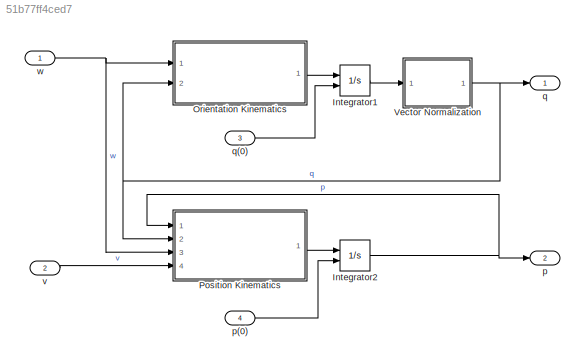
MODEL slx_51b77ff4ced7
KIND model
CONFIG AbsTol = auto
CONFIG EnableMultiTasking = off
CONFIG FixedStep = auto
CONFIG MaxStep = auto
CONFIG MinStep = auto
CONFIG RelTol = 1e-3
CONFIG SampleTimeConstraint = Unconstrained
CONFIG SolverName = VariableStepAuto
CONFIG StartTime = 0.0
CONFIG StopTime = 10.0
BLOCK [Integrator] Integrator1
  InitialConditionSource = external
  Ports = [2, 1]
BLOCK [Integrator] Integrator2
  InitialConditionSource = external
  Ports = [2, 1]
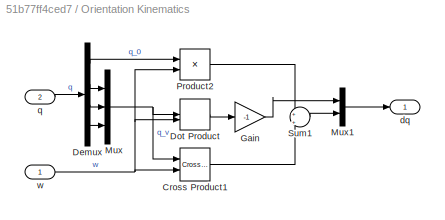
BLOCK [SubSystem] Orientation Kinematics
  Ports = [2, 1]
  RequestExecContextInheritance = off
BLOCK [Reference] Orientation Kinematics/Cross Product1  REF=vrlib/Utilities/Cross Product
  Ports = [2, 1]
  SourceBlock = vrlib/Utilities/Cross Product
  SourceProductBaseCode = SL
  SourceType = Cross Product
BLOCK [Demux] Orientation Kinematics/Demux
  Ports = [1, 4]
BLOCK [DotProduct] Orientation Kinematics/Dot Product
  OutDataTypeStr = Inherit: Inherit via internal rule
BLOCK [Gain] Orientation Kinematics/Gain
  Gain = -1
BLOCK [Mux] Orientation Kinematics/Mux
  DisplayOption = bar
  Inputs = 3
  Ports = [3, 1]
BLOCK [Mux] Orientation Kinematics/Mux1
  DisplayOption = bar
  Inputs = 2
  Ports = [2, 1]
BLOCK [Product] Orientation Kinematics/Product2
  Ports = [2, 1]
BLOCK [Sum] Orientation Kinematics/Sum1
  Inputs = +|+
  Ports = [2, 1]
BLOCK [Outport] Orientation Kinematics/dq
BLOCK [Inport] Orientation Kinematics/q
  Port = 2
BLOCK [Inport] Orientation Kinematics/w
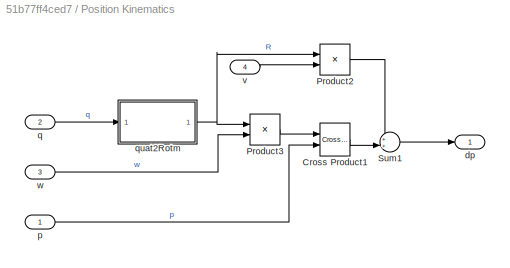
BLOCK [SubSystem] Position Kinematics
  Ports = [4, 1]
  RequestExecContextInheritance = off
BLOCK [Reference] Position Kinematics/Cross Product1  REF=vrlib/Utilities/Cross Product
  Ports = [2, 1]
  SourceBlock = vrlib/Utilities/Cross Product
  SourceProductBaseCode = SL
  SourceType = Cross Product
BLOCK [Product] Position Kinematics/Product2
  Multiplication = Matrix(*)
  Ports = [2, 1]
BLOCK [Product] Position Kinematics/Product3
  Multiplication = Matrix(*)
  Ports = [2, 1]
BLOCK [Sum] Position Kinematics/Sum1
  Inputs = ++|
  Ports = [2, 1]
BLOCK [Outport] Position Kinematics/dp
BLOCK [Inport] Position Kinematics/p
BLOCK [Inport] Position Kinematics/q
  Port = 2
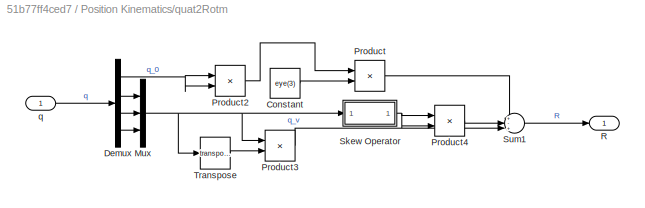
BLOCK [SubSystem] Position Kinematics/quat2Rotm
  Ports = [1, 1]
  RequestExecContextInheritance = off
BLOCK [Constant] Position Kinematics/quat2Rotm/Constant
  Value = eye(3)
BLOCK [Demux] Position Kinematics/quat2Rotm/Demux
  Ports = [1, 4]
BLOCK [Mux] Position Kinematics/quat2Rotm/Mux
  DisplayOption = bar
  Inputs = 3
  Ports = [3, 1]
BLOCK [Product] Position Kinematics/quat2Rotm/Product
  Ports = [2, 1]
BLOCK [Product] Position Kinematics/quat2Rotm/Product2
  Ports = [2, 1]
BLOCK [Product] Position Kinematics/quat2Rotm/Product3
  Multiplication = Matrix(*)
  Ports = [2, 1]
BLOCK [Product] Position Kinematics/quat2Rotm/Product4
  Multiplication = Matrix(*)
  Ports = [2, 1]
BLOCK [Outport] Position Kinematics/quat2Rotm/R
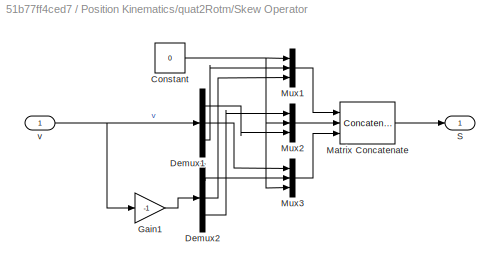
BLOCK [SubSystem] Position Kinematics/quat2Rotm/Skew Operator
  Description = S(v)
  Ports = [1, 1]
  RequestExecContextInheritance = off
BLOCK [Constant] Position Kinematics/quat2Rotm/Skew Operator/Constant
  Value = 0
BLOCK [Demux] Position Kinematics/quat2Rotm/Skew Operator/Demux1
  Outputs = 3
  Ports = [1, 3]
BLOCK [Demux] Position Kinematics/quat2Rotm/Skew Operator/Demux2
  Outputs = 3
  Ports = [1, 3]
BLOCK [Gain] Position Kinematics/quat2Rotm/Skew Operator/Gain1
  Gain = -1
BLOCK [Concatenate] Position Kinematics/quat2Rotm/Skew Operator/Matrix Concatenate
  ConcatenateDimension = 2
  Mode = Multidimensional array
  NumInputs = 3
  Ports = [3, 1]
BLOCK [Mux] Position Kinematics/quat2Rotm/Skew Operator/Mux1
  DisplayOption = bar
  Inputs = 3
  Ports = [3, 1]
BLOCK [Mux] Position Kinematics/quat2Rotm/Skew Operator/Mux2
  DisplayOption = bar
  Inputs = 3
  Ports = [3, 1]
BLOCK [Mux] Position Kinematics/quat2Rotm/Skew Operator/Mux3
  DisplayOption = bar
  Inputs = 3
  Ports = [3, 1]
BLOCK [Outport] Position Kinematics/quat2Rotm/Skew Operator/S
BLOCK [Inport] Position Kinematics/quat2Rotm/Skew Operator/v
BLOCK [Sum] Position Kinematics/quat2Rotm/Sum1
  Inputs = +-+
  Ports = [3, 1]
BLOCK [Math] Position Kinematics/quat2Rotm/Transpose
  Operator = transpose
  Ports = [1, 1]
BLOCK [Inport] Position Kinematics/quat2Rotm/q
BLOCK [Inport] Position Kinematics/v
  Port = 4
BLOCK [Inport] Position Kinematics/w
  Port = 3
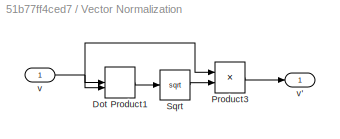
BLOCK [SubSystem] Vector Normalization
  Ports = [1, 1]
  RequestExecContextInheritance = off
BLOCK [DotProduct] Vector Normalization/Dot Product1
  OutDataTypeStr = Inherit: Inherit via internal rule
BLOCK [Product] Vector Normalization/Product3
  Inputs = */
  Ports = [2, 1]
BLOCK [Sqrt] Vector Normalization/Sqrt
BLOCK [Inport] Vector Normalization/v
BLOCK [Outport] Vector Normalization/v'
BLOCK [Outport] p
  Port = 2
BLOCK [Inport] p(0)
  Port = 4
  PortDimensions = 3
BLOCK [Outport] q
BLOCK [Inport] q(0)
  Port = 3
  PortDimensions = 4
BLOCK [Inport] v
  Port = 2
  PortDimensions = 3
BLOCK [Inport] w
  PortDimensions = 3
LINE Integrator1:1 -> Vector Normalization:1
NET Integrator2:1 -> Position Kinematics:1, p:1
LINE Orientation Kinematics/Cross Product1:1 -> Orientation Kinematics/Sum1:2
LINE Orientation Kinematics/Demux:1 -> Orientation Kinematics/Product2:1
LINE Orientation Kinematics/Demux:2 -> Orientation Kinematics/Mux:1
LINE Orientation Kinematics/Demux:3 -> Orientation Kinematics/Mux:2
LINE Orientation Kinematics/Demux:4 -> Orientation Kinematics/Mux:3
LINE Orientation Kinematics/Dot Product:1 -> Orientation Kinematics/Gain:1
LINE Orientation Kinematics/Gain:1 -> Orientation Kinematics/Mux1:1
LINE Orientation Kinematics/Mux1:1 -> Orientation Kinematics/dq:1
NET Orientation Kinematics/Mux:1 -> Orientation Kinematics/Cross Product1:1, Orientation Kinematics/Dot Product:1
LINE Orientation Kinematics/Product2:1 -> Orientation Kinematics/Sum1:1
LINE Orientation Kinematics/Sum1:1 -> Orientation Kinematics/Mux1:2
LINE Orientation Kinematics/q:1 -> Orientation Kinematics/Demux:1
NET Orientation Kinematics/w:1 -> Orientation Kinematics/Cross Product1:2, Orientation Kinematics/Dot Product:2, Orientation Kinematics/Product2:2
LINE Orientation Kinematics:1 -> Integrator1:1
LINE Position Kinematics/Cross Product1:1 -> Position Kinematics/Sum1:2
LINE Position Kinematics/Product2:1 -> Position Kinematics/Sum1:1
LINE Position Kinematics/Product3:1 -> Position Kinematics/Cross Product1:1
LINE Position Kinematics/Sum1:1 -> Position Kinematics/dp:1
LINE Position Kinematics/p:1 -> Position Kinematics/Cross Product1:2
LINE Position Kinematics/q:1 -> Position Kinematics/quat2Rotm:1
LINE Position Kinematics/quat2Rotm/Constant:1 -> Position Kinematics/quat2Rotm/Product:2
NET Position Kinematics/quat2Rotm/Demux:1 -> Position Kinematics/quat2Rotm/Product2:1, Position Kinematics/quat2Rotm/Product2:2
LINE Position Kinematics/quat2Rotm/Demux:2 -> Position Kinematics/quat2Rotm/Mux:1
LINE Position Kinematics/quat2Rotm/Demux:3 -> Position Kinematics/quat2Rotm/Mux:2
LINE Position Kinematics/quat2Rotm/Demux:4 -> Position Kinematics/quat2Rotm/Mux:3
NET Position Kinematics/quat2Rotm/Mux:1 -> Position Kinematics/quat2Rotm/Product3:1, Position Kinematics/quat2Rotm/Skew Operator:1, Position Kinematics/quat2Rotm/Transpose:1
LINE Position Kinematics/quat2Rotm/Product2:1 -> Position Kinematics/quat2Rotm/Product:1
LINE Position Kinematics/quat2Rotm/Product3:1 -> Position Kinematics/quat2Rotm/Sum1:3
LINE Position Kinematics/quat2Rotm/Product4:1 -> Position Kinematics/quat2Rotm/Sum1:2
LINE Position Kinematics/quat2Rotm/Product:1 -> Position Kinematics/quat2Rotm/Sum1:1
NET Position Kinematics/quat2Rotm/Skew Operator/Constant:1 -> Position Kinematics/quat2Rotm/Skew Operator/Mux1:1, Position Kinematics/quat2Rotm/Skew Operator/Mux2:2, Position Kinematics/quat2Rotm/Skew Operator/Mux3:3
LINE Position Kinematics/quat2Rotm/Skew Operator/Demux1:1 -> Position Kinematics/quat2Rotm/Skew Operator/Mux2:3
LINE Position Kinematics/quat2Rotm/Skew Operator/Demux1:2 -> Position Kinematics/quat2Rotm/Skew Operator/Mux3:1
LINE Position Kinematics/quat2Rotm/Skew Operator/Demux1:3 -> Position Kinematics/quat2Rotm/Skew Operator/Mux1:2
LINE Position Kinematics/quat2Rotm/Skew Operator/Demux2:1 -> Position Kinematics/quat2Rotm/Skew Operator/Mux3:2
LINE Position Kinematics/quat2Rotm/Skew Operator/Demux2:2 -> Position Kinematics/quat2Rotm/Skew Operator/Mux1:3
LINE Position Kinematics/quat2Rotm/Skew Operator/Demux2:3 -> Position Kinematics/quat2Rotm/Skew Operator/Mux2:1
LINE Position Kinematics/quat2Rotm/Skew Operator/Gain1:1 -> Position Kinematics/quat2Rotm/Skew Operator/Demux2:1
LINE Position Kinematics/quat2Rotm/Skew Operator/Matrix Concatenate:1 -> Position Kinematics/quat2Rotm/Skew Operator/S:1
LINE Position Kinematics/quat2Rotm/Skew Operator/Mux1:1 -> Position Kinematics/quat2Rotm/Skew Operator/Matrix Concatenate:1
LINE Position Kinematics/quat2Rotm/Skew Operator/Mux2:1 -> Position Kinematics/quat2Rotm/Skew Operator/Matrix Concatenate:2
LINE Position Kinematics/quat2Rotm/Skew Operator/Mux3:1 -> Position Kinematics/quat2Rotm/Skew Operator/Matrix Concatenate:3
NET Position Kinematics/quat2Rotm/Skew Operator/v:1 -> Position Kinematics/quat2Rotm/Skew Operator/Demux1:1, Position Kinematics/quat2Rotm/Skew Operator/Gain1:1
NET Position Kinematics/quat2Rotm/Skew Operator:1 -> Position Kinematics/quat2Rotm/Product4:1, Position Kinematics/quat2Rotm/Product4:2
LINE Position Kinematics/quat2Rotm/Sum1:1 -> Position Kinematics/quat2Rotm/R:1
LINE Position Kinematics/quat2Rotm/Transpose:1 -> Position Kinematics/quat2Rotm/Product3:2
LINE Position Kinematics/quat2Rotm/q:1 -> Position Kinematics/quat2Rotm/Demux:1
NET Position Kinematics/quat2Rotm:1 -> Position Kinematics/Product2:1, Position Kinematics/Product3:1
LINE Position Kinematics/v:1 -> Position Kinematics/Product2:2
LINE Position Kinematics/w:1 -> Position Kinematics/Product3:2
LINE Position Kinematics:1 -> Integrator2:1
LINE Vector Normalization/Dot Product1:1 -> Vector Normalization/Sqrt:1
LINE Vector Normalization/Product3:1 -> Vector Normalization/v':1
LINE Vector Normalization/Sqrt:1 -> Vector Normalization/Product3:2
NET Vector Normalization/v:1 -> Vector Normalization/Dot Product1:1, Vector Normalization/Dot Product1:2, Vector Normalization/Product3:1
NET Vector Normalization:1 -> Orientation Kinematics:2, Position Kinematics:2, q:1
LINE p(0):1 -> Integrator2:2
LINE q(0):1 -> Integrator1:2
LINE v:1 -> Position Kinematics:4
NET w:1 -> Orientation Kinematics:1, Position Kinematics:3
note: NET lines group one-source signal fan-out (src -> all destinations, sorted); 1:1 wires keep LINE
